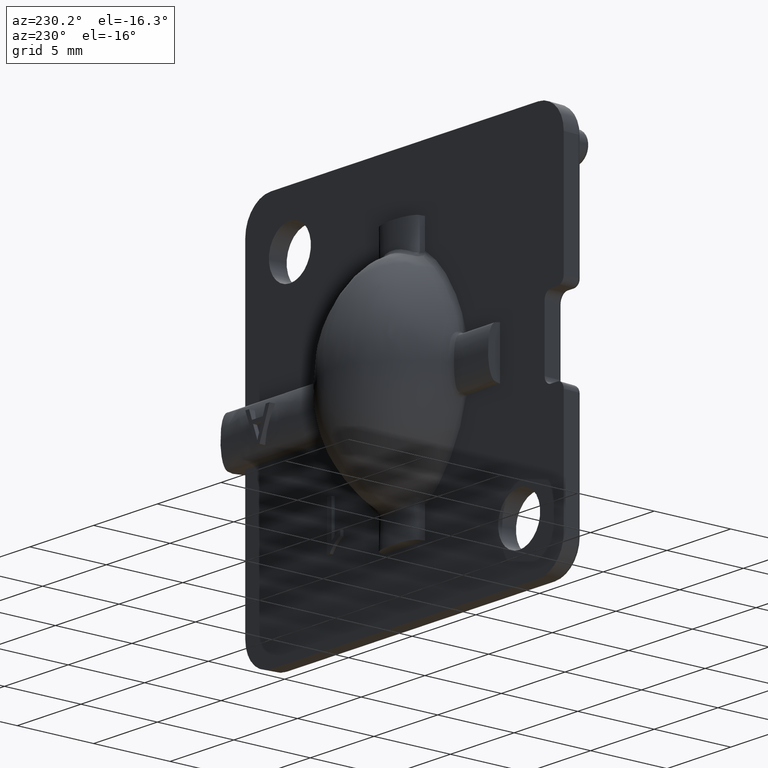
[diagram: clean part render]
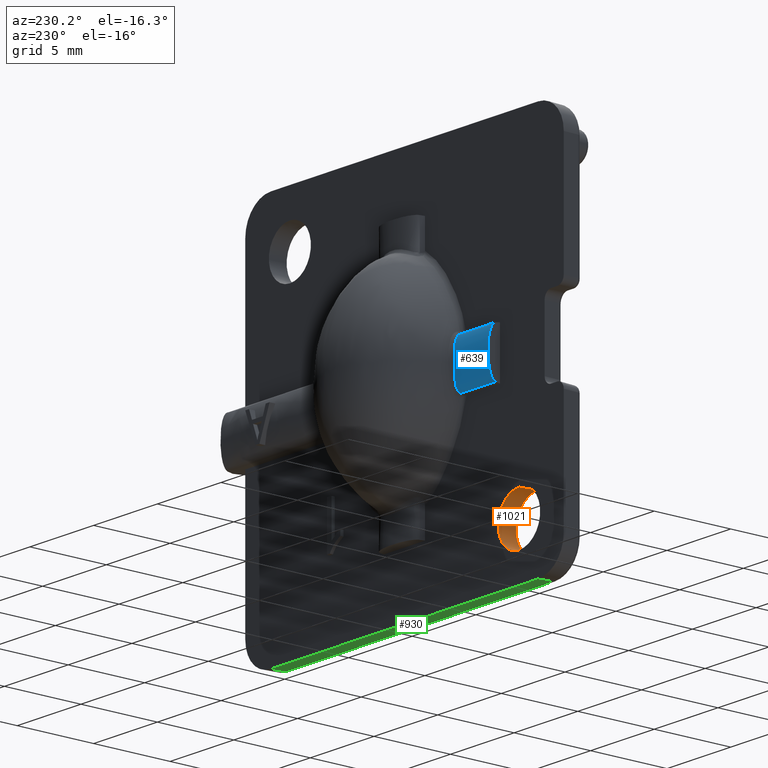
[diagram: same view with three faces highlighted in distinct colors, each labeled with its STEP entity id]
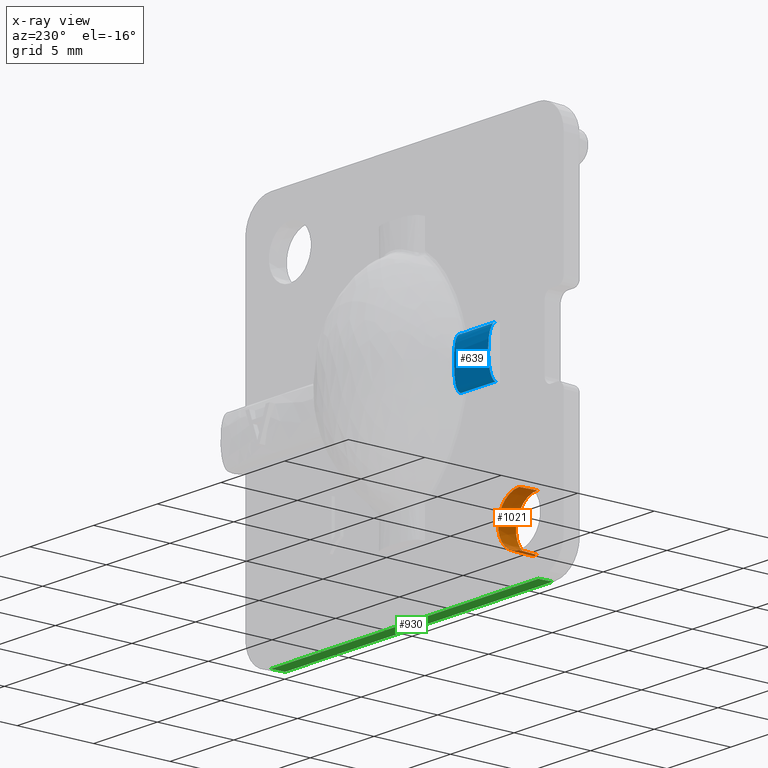
[diagram: x-ray of the same camera — body ghosted, the three highlighted faces saturated]
A machine part, auxiliary view with three faces highlighted in distinct colors.
The next image is the same camera in x-ray (body ghosted, the three faces saturated) — at least one of them is partly hidden behind the body in this view.
Their STEP definitions:

[orange] entity #1021 — the highlighted conical surface has half-angle 2 deg.
#133 = AXIS2_PLACEMENT_3D ( 'NONE', #7194, #1675, #2802 ) ;
#169 = DIRECTION ( 'NONE',  ( -0.0000000000000000000, -1.000000000000000000, -0.0000000000000000000 ) ) ;
#493 = CIRCLE ( 'NONE', #3552, 1.650000000000000400 ) ;
#892 = EDGE_CURVE ( 'NONE', #6157, #5288, #6266, .T. ) ;
#918 = ORIENTED_EDGE ( 'NONE', *, *, #892, .F. ) ;
#1021 = ADVANCED_FACE ( 'NONE', ( #4294 ), #5417, .F. ) ;
#1201 = CARTESIAN_POINT ( 'NONE',  ( -8.999999999999998200, 0.4999999999999998900, -10.65000000000000200 ) ) ;
#1650 = LINE ( 'NONE', #5613, #3029 ) ;
#1675 = DIRECTION ( 'NONE',  ( -0.0000000000000000000, -1.000000000000000000, -0.0000000000000000000 ) ) ;
#1678 = ORIENTED_EDGE ( 'NONE', *, *, #2415, .F. ) ;
#2415 = EDGE_CURVE ( 'NONE', #5965, #6157, #493, .T. ) ;
#2594 = VERTEX_POINT ( 'NONE', #3665 ) ;
#2612 = CARTESIAN_POINT ( 'NONE',  ( -8.999999999999998200, 0.4999999999999998900, -7.350000000000000500 ) ) ;
#2802 = DIRECTION ( 'NONE',  ( 0.0000000000000000000, 0.0000000000000000000, -1.000000000000000000 ) ) ;
#3029 = VECTOR ( 'NONE', #4529, 1000.000000000000100 ) ;
#3048 = CARTESIAN_POINT ( 'NONE',  ( -8.999999999999998200, -0.6999999999999999600, -7.308095076609903100 ) ) ;
#3059 = ORIENTED_EDGE ( 'NONE', *, *, #5029, .T. ) ;
#3124 = DIRECTION ( 'NONE',  ( 0.0000000000000000000, -1.000000000000000000, 0.0000000000000000000 ) ) ;
#3231 = EDGE_CURVE ( 'NONE', #2594, #5288, #3722, .T. ) ;
#3552 = AXIS2_PLACEMENT_3D ( 'NONE', #6406, #3124, #6947 ) ;
#3665 = CARTESIAN_POINT ( 'NONE',  ( -8.999999999999998200, -0.6999999999999999600, -10.69190492339010000 ) ) ;
#3690 = CARTESIAN_POINT ( 'NONE',  ( -8.999999999999998200, -0.6999999999999999600, -9.000000000000001800 ) ) ;
#3722 = CIRCLE ( 'NONE', #6634, 1.691904923390098000 ) ;
#4230 = EDGE_LOOP ( 'NONE', ( #918, #1678, #3059, #4535 ) ) ;
#4233 = DIRECTION ( 'NONE',  ( 0.0000000000000000000, 0.0000000000000000000, 1.000000000000000000 ) ) ;
#4294 = FACE_OUTER_BOUND ( 'NONE', #4230, .T. ) ;
#4529 = DIRECTION ( 'NONE',  ( 0.0000000000000000000, -0.9993908270190956500, -0.03489949670250104600 ) ) ;
#4535 = ORIENTED_EDGE ( 'NONE', *, *, #3231, .T. ) ;
#4687 = DIRECTION ( 'NONE',  ( 4.273955692857151000E-018, -0.9993908270190956500, 0.03489949670250104600 ) ) ;
#4831 = VECTOR ( 'NONE', #4687, 1000.000000000000100 ) ;
#5029 = EDGE_CURVE ( 'NONE', #5965, #2594, #1650, .T. ) ;
#5241 = CARTESIAN_POINT ( 'NONE',  ( -8.999999999999998200, 0.4999999999999998900, -7.350000000000000500 ) ) ;
#5288 = VERTEX_POINT ( 'NONE', #3048 ) ;
#5417 = CONICAL_SURFACE ( 'NONE', #133, 1.650000000000000400, 0.03490658503988666700 ) ;
#5613 = CARTESIAN_POINT ( 'NONE',  ( -8.999999999999998200, 0.4999999999999998900, -10.65000000000000200 ) ) ;
#5965 = VERTEX_POINT ( 'NONE', #1201 ) ;
#6157 = VERTEX_POINT ( 'NONE', #2612 ) ;
#6266 = LINE ( 'NONE', #5241, #4831 ) ;
#6406 = CARTESIAN_POINT ( 'NONE',  ( -8.999999999999998200, 0.4999999999999998900, -9.000000000000001800 ) ) ;
#6634 = AXIS2_PLACEMENT_3D ( 'NONE', #3690, #169, #4233 ) ;
#6947 = DIRECTION ( 'NONE',  ( 0.0000000000000000000, 0.0000000000000000000, -1.000000000000000000 ) ) ;
#7194 = CARTESIAN_POINT ( 'NONE',  ( -8.999999999999998200, 0.4999999999999998900, -9.000000000000001800 ) ) ;

[blue] entity #639 — the highlighted face is a freeform B-spline surface patch.
#29 = LINE ( 'NONE', #1826, #5952 ) ;
#291 = CARTESIAN_POINT ( 'NONE',  ( -4.770174270361757800, 1.147807441723481100, 1.127950663310366200 ) ) ;
#315 = CARTESIAN_POINT ( 'NONE',  ( -4.781176376034385300, 0.8321247373927749300, -1.545658026113621200 ) ) ;
#447 = CARTESIAN_POINT ( 'NONE',  ( -4.733555855864324300, 0.7999999999999999300, 1.551396557744878100 ) ) ;
#496 = CARTESIAN_POINT ( 'NONE',  ( -4.733555855864324300, 1.456278079737628000, -1.434163770094243100 ) ) ;
#606 = VECTOR ( 'NONE', #5333, 1000.000000000000000 ) ;
#622 = CARTESIAN_POINT ( 'NONE',  ( -4.796338257051502300, 0.7999999999999999300, 1.551396557744878100 ) ) ;
#639 = ADVANCED_FACE ( 'NONE', ( #3089 ), #5142, .F. ) ;
#887 = CARTESIAN_POINT ( 'NONE',  ( -4.815613606308573000, 1.270967718207461000, 0.5728415203237052800 ) ) ;
#1019 = VERTEX_POINT ( 'NONE', #5567 ) ;
#1085 = ORIENTED_EDGE ( 'NONE', *, *, #7286, .F. ) ;
#1172 = CARTESIAN_POINT ( 'NONE',  ( -7.500000000000000000, 1.456278079737628000, -1.434163770094243100 ) ) ;
#1313 = EDGE_CURVE ( 'NONE', #5190, #3067, #5539, .T. ) ;
#1367 = CARTESIAN_POINT ( 'NONE',  ( -4.769671852124656800, 0.8650959743349701000, 1.532319936695176700 ) ) ;
#1462 = ORIENTED_EDGE ( 'NONE', *, *, #6357, .T. ) ;
#1496 = CARTESIAN_POINT ( 'NONE',  ( -4.828431654304036900, 1.292198830366342800, -0.2864335833069068200 ) ) ;
#1538 = CARTESIAN_POINT ( 'NONE',  ( -7.499999999993178800, 1.456278079737625400, 1.434163770094243100 ) ) ;
#1620 = VERTEX_POINT ( 'NONE', #3997 ) ;
#1826 = CARTESIAN_POINT ( 'NONE',  ( 500000.0000000000600, 0.7999999999999999300, -1.551396557744878100 ) ) ;
#2101 = CARTESIAN_POINT ( 'NONE',  ( -4.783206184670167900, 1.184720816287818200, -0.9909391049651677900 ) ) ;
#2193 = LINE ( 'NONE', #3670, #606 ) ;
#2411 = DIRECTION ( 'NONE',  ( -1.000000000000000000, -0.0000000000000000000, -0.0000000000000000000 ) ) ;
#2679 = CARTESIAN_POINT ( 'NONE',  ( -4.755441841975063300, 1.057467659280215500, -1.324855847312984800 ) ) ;
#2826 = CARTESIAN_POINT ( 'NONE',  ( -4.796338610901784700, 0.7999999999999999300, -1.551396557744878100 ) ) ;
#2946 = CARTESIAN_POINT ( 'NONE',  ( -7.500000000000000000, 0.7999999999999999300, -1.551396557744878100 ) ) ;
#2969 = CARTESIAN_POINT ( 'NONE',  ( -7.500000000000000000, 1.456278079737625400, 1.434163770094243100 ) ) ;
#3067 = VERTEX_POINT ( 'NONE', #2826 ) ;
#3089 = FACE_OUTER_BOUND ( 'NONE', #6422, .T. ) ;
#3233 = CARTESIAN_POINT ( 'NONE',  ( -4.733555855864324300, 1.456278079737625400, 1.434163770094243100 ) ) ;
#3240 = CARTESIAN_POINT ( 'NONE',  ( -4.753684722236634700, 0.9517145227043815000, 1.468596472399498600 ) ) ;
#3262 = CARTESIAN_POINT ( 'NONE',  ( -4.753709571989656300, 0.9515612476330757000, -1.468707158730400600 ) ) ;
#3670 = CARTESIAN_POINT ( 'NONE',  ( 500000.0000000000600, 0.7999999999999999300, 1.551396557744878100 ) ) ;
#3793 = CARTESIAN_POINT ( 'NONE',  ( -4.755532739691810600, 1.058252106885458200, 1.323412390139632600 ) ) ;
#3817 = CARTESIAN_POINT ( 'NONE',  ( -4.769607677964671700, 0.8653888030378847900, -1.532127480793534600 ) ) ;
#3975 = CARTESIAN_POINT ( 'NONE',  ( -4.733555855864324300, 0.7999999999999999300, -1.551396557744878100 ) ) ;
#3997 = CARTESIAN_POINT ( 'NONE',  ( -7.500000000000000000, 0.7999999999999999300, -1.551396557744878100 ) ) ;
#4348 = CARTESIAN_POINT ( 'NONE',  ( -4.783192420930821400, 1.184686317168546400, 0.9911162417460630500 ) ) ;
#4366 = CARTESIAN_POINT ( 'NONE',  ( -4.796338610901784700, 0.7999999999999999300, -1.551396557744878100 ) ) ;
#4525 = B_SPLINE_CURVE_WITH_KNOTS ( 'NONE', 3,
 ( #2946, #1172, #2969, #6799 ),
 .UNSPECIFIED., .F., .F.,
 ( 4, 4 ),
 ( 0.0000000000000000000, 1.000000000000000000 ),
 .UNSPECIFIED. ) ;
#4911 = CARTESIAN_POINT ( 'NONE',  ( -4.828439963839681300, 1.292218283348900900, 0.2860874688015143700 ) ) ;
#5115 = CARTESIAN_POINT ( 'NONE',  ( -7.499999999993178800, 1.456278079737628000, -1.434163770094243100 ) ) ;
#5142 = B_SPLINE_SURFACE_WITH_KNOTS ( 'NONE', 3, 1, ( 
 ( #3975, #5217 ),
 ( #496, #5115 ),
 ( #3233, #1538 ),
 ( #447, #5741 ) ),
 .UNSPECIFIED., .F., .F., .F.,
 ( 4, 4 ),
 ( 2, 2 ),
 ( 0.0000000000000000000, 1.000000000000000000 ),
 ( 0.0000000000000000000, 1.000000000000000000 ),
 .UNSPECIFIED. ) ;
#5190 = VERTEX_POINT ( 'NONE', #622 ) ;
#5217 = CARTESIAN_POINT ( 'NONE',  ( -7.499999999993178800, 0.7999999999999999300, -1.551396557744878100 ) ) ;
#5333 = DIRECTION ( 'NONE',  ( -1.000000000000000000, -0.0000000000000000000, -0.0000000000000000000 ) ) ;
#5460 = CARTESIAN_POINT ( 'NONE',  ( -4.815577703993478800, 1.270873773318751200, -0.5733167257255840100 ) ) ;
#5539 = B_SPLINE_CURVE_WITH_KNOTS ( 'NONE', 3,
 ( #5981, #6480, #1367, #6524, #3240, #7080, #3793, #291, #4348, #887, #4911, #1496, #5460, #2101, #6004, #2679, #6547, #3262, #7105, #3817, #315, #4366 ),
 .UNSPECIFIED., .F., .F.,
 ( 4, 2, 2, 2, 2, 2, 2, 2, 2, 2, 4 ),
 ( -5.999999564826702100E-008, 0.0001078909410122954100, 0.0002158418820202390800, 0.0004317437640361260400, 0.0008635475280678992900, 0.001727155056131446500, 0.002590762584194994000, 0.003022566348226768100, 0.003238468230242655200, 0.003346419171250598600, 0.003454370112258541400 ),
 .UNSPECIFIED. ) ;
#5567 = CARTESIAN_POINT ( 'NONE',  ( -7.500000000000000000, 0.7999999999999999300, 1.551396557744878100 ) ) ;
#5622 = ORIENTED_EDGE ( 'NONE', *, *, #1313, .T. ) ;
#5741 = CARTESIAN_POINT ( 'NONE',  ( -7.499999999993178800, 0.7999999999999999300, 1.551396557744878100 ) ) ;
#5952 = VECTOR ( 'NONE', #2411, 1000.000000000000000 ) ;
#5964 = ORIENTED_EDGE ( 'NONE', *, *, #7097, .T. ) ;
#5981 = CARTESIAN_POINT ( 'NONE',  ( -4.796338257051502300, 0.7999999999999999300, 1.551396557744878100 ) ) ;
#6004 = CARTESIAN_POINT ( 'NONE',  ( -4.769993847783204900, 1.147144579011667900, -1.129924827114247700 ) ) ;
#6357 = EDGE_CURVE ( 'NONE', #3067, #1620, #29, .T. ) ;
#6422 = EDGE_LOOP ( 'NONE', ( #1085, #5622, #1462, #5964 ) ) ;
#6480 = CARTESIAN_POINT ( 'NONE',  ( -4.781176024606930100, 0.8321247385554143600, 1.545658025916487400 ) ) ;
#6524 = CARTESIAN_POINT ( 'NONE',  ( -4.756261910675850600, 0.9248519869187439300, 1.493536361789330200 ) ) ;
#6547 = CARTESIAN_POINT ( 'NONE',  ( -4.751110456759176000, 1.021779846275285400, -1.387916119944638100 ) ) ;
#6799 = CARTESIAN_POINT ( 'NONE',  ( -7.500000000000000000, 0.7999999999999999300, 1.551396557744878100 ) ) ;
#7080 = CARTESIAN_POINT ( 'NONE',  ( -4.751115652172439100, 1.022652788613740200, 1.386778759248208400 ) ) ;
#7097 = EDGE_CURVE ( 'NONE', #1620, #1019, #4525, .T. ) ;
#7105 = CARTESIAN_POINT ( 'NONE',  ( -4.756333470101157700, 0.9245299464794519700, -1.493747775885646300 ) ) ;
#7286 = EDGE_CURVE ( 'NONE', #5190, #1019, #2193, .T. ) ;

[green] entity #930 — the highlighted planar face has unit normal (-0, -0.0349, -0.9994).
#117 = LINE ( 'NONE', #5742, #4562 ) ;
#176 = DIRECTION ( 'NONE',  ( 0.0000000000000000000, 0.9993908270190956500, -0.03489949670250104600 ) ) ;
#533 = LINE ( 'NONE', #5416, #4943 ) ;
#930 = ADVANCED_FACE ( 'NONE', ( #4999 ), #3145, .T. ) ;
#973 = CARTESIAN_POINT ( 'NONE',  ( 10.49999999999999500, -0.4587248741756251900, -12.46652058966291300 ) ) ;
#1027 = DIRECTION ( 'NONE',  ( -0.0000000000000000000, -0.9993908270190956500, 0.03489949670250104600 ) ) ;
#1452 = DIRECTION ( 'NONE',  ( 1.153161451992451800E-017, -0.9993908270190956500, 0.03489949670250103900 ) ) ;
#1514 = EDGE_CURVE ( 'NONE', #6724, #5516, #117, .T. ) ;
#1817 = CARTESIAN_POINT ( 'NONE',  ( -10.50000000000000500, -0.4587248741756253000, -12.46652058966290800 ) ) ;
#1928 = LINE ( 'NONE', #6087, #4754 ) ;
#2399 = DIRECTION ( 'NONE',  ( -1.000000000000000000, -0.0000000000000000000, 3.304235192336775500E-016 ) ) ;
#2400 = DIRECTION ( 'NONE',  ( -1.000000000000000000, -1.721616614618981100E-033, 3.304235192336775500E-016 ) ) ;
#2765 = ORIENTED_EDGE ( 'NONE', *, *, #7125, .T. ) ;
#3145 = PLANE ( 'NONE',  #4936 ) ;
#3249 = CARTESIAN_POINT ( 'NONE',  ( -10.50000000000000500, 0.4999999999999998900, -12.49999999999999800 ) ) ;
#3273 = EDGE_LOOP ( 'NONE', ( #7269, #2765, #6171, #5830 ) ) ;
#3306 = CARTESIAN_POINT ( 'NONE',  ( -10.50000000000000500, -0.4587248741756250700, -12.46652058966291000 ) ) ;
#3696 = DIRECTION ( 'NONE',  ( -3.302222341535051700E-016, -0.03489949670250105200, -0.9993908270190957600 ) ) ;
#3821 = CARTESIAN_POINT ( 'NONE',  ( 10.49999999999999500, 0.4999999999999998900, -12.50000000000000400 ) ) ;
#4161 = CARTESIAN_POINT ( 'NONE',  ( -10.50000000000000500, 0.4999999999999998900, -12.49999999999999800 ) ) ;
#4562 = VECTOR ( 'NONE', #2399, 1000.000000000000000 ) ;
#4754 = VECTOR ( 'NONE', #1027, 1000.000000000000200 ) ;
#4892 = VERTEX_POINT ( 'NONE', #3306 ) ;
#4931 = EDGE_CURVE ( 'NONE', #5516, #4892, #1928, .T. ) ;
#4936 = AXIS2_PLACEMENT_3D ( 'NONE', #4161, #3696, #176 ) ;
#4943 = VECTOR ( 'NONE', #1452, 1000.000000000000200 ) ;
#4999 = FACE_OUTER_BOUND ( 'NONE', #3273, .T. ) ;
#5416 = CARTESIAN_POINT ( 'NONE',  ( 10.49999999999999500, 0.4999999999999997800, -12.50000000000000500 ) ) ;
#5453 = EDGE_CURVE ( 'NONE', #6724, #5664, #533, .T. ) ;
#5516 = VERTEX_POINT ( 'NONE', #3249 ) ;
#5519 = VECTOR ( 'NONE', #2400, 1000.000000000000000 ) ;
#5664 = VERTEX_POINT ( 'NONE', #973 ) ;
#5695 = LINE ( 'NONE', #1817, #5519 ) ;
#5742 = CARTESIAN_POINT ( 'NONE',  ( -10.50000000000000500, 0.4999999999999998900, -12.49999999999999800 ) ) ;
#5830 = ORIENTED_EDGE ( 'NONE', *, *, #1514, .F. ) ;
#6087 = CARTESIAN_POINT ( 'NONE',  ( -10.50000000000000500, 0.4999999999999998900, -12.50000000000000000 ) ) ;
#6171 = ORIENTED_EDGE ( 'NONE', *, *, #4931, .F. ) ;
#6724 = VERTEX_POINT ( 'NONE', #3821 ) ;
#7125 = EDGE_CURVE ( 'NONE', #5664, #4892, #5695, .T. ) ;
#7269 = ORIENTED_EDGE ( 'NONE', *, *, #5453, .T. ) ;